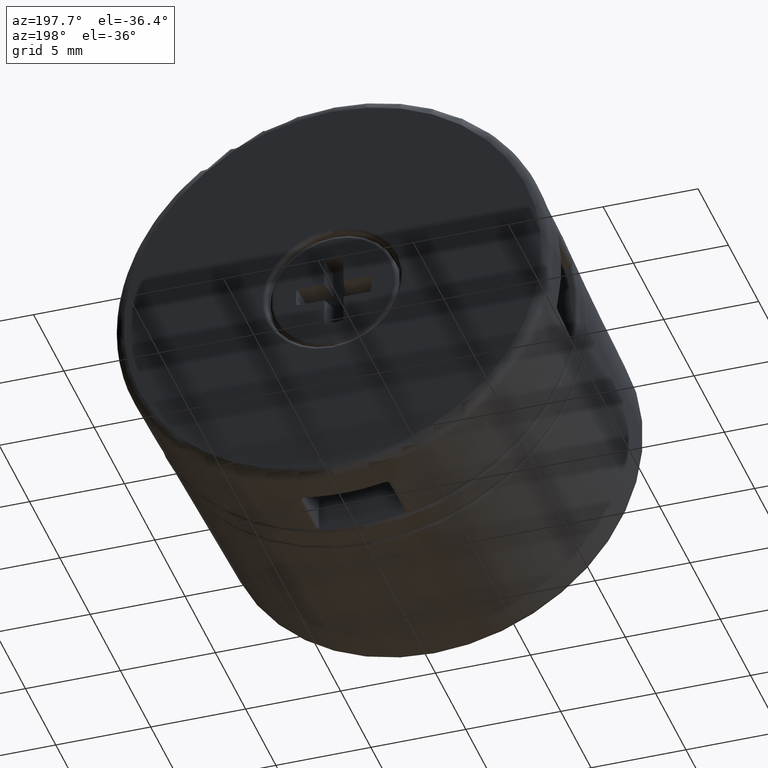
[diagram: clean part render]
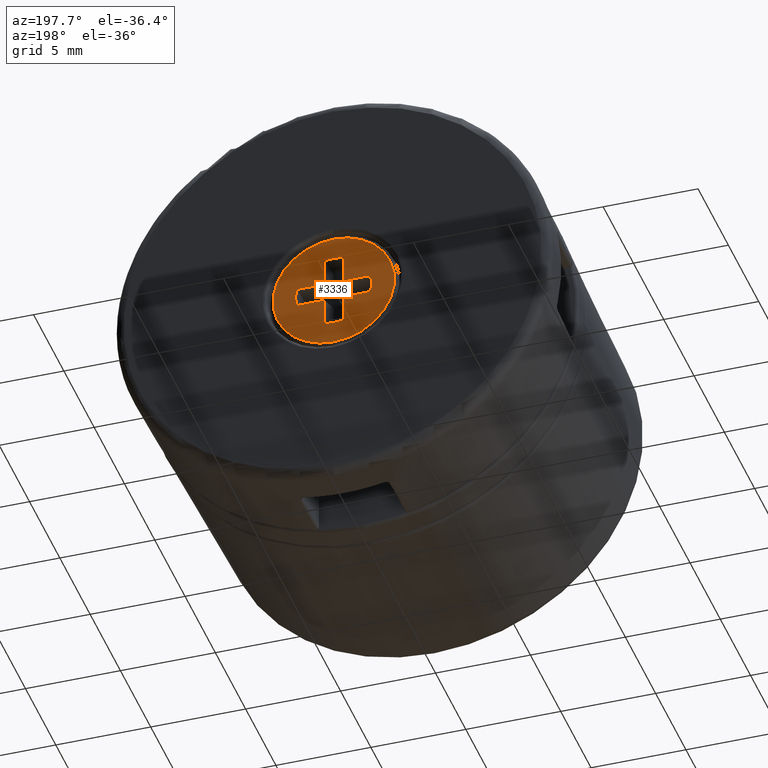
[diagram: same view with one face highlighted and labeled with its STEP entity id]
A machine part, auxiliary view. The second image highlights one B-rep face of the part: STEP entity #3336.
In plain terms, the highlighted planar face has unit normal (0, 1, 0).
Its self-contained STEP definition (entity closure, byte-faithful):
#23 = EDGE_LOOP ( 'NONE', ( #3552, #3553, #3571, #3567, #3575, #4066, #4089, #49, #4155, #4048, #4065, #4046, #4041 ) ) ;
#24 = EDGE_LOOP ( 'NONE', ( #50, #4037 ) ) ;
#49 = ORIENTED_EDGE ( 'NONE', *, *, #3244, .F. ) ;
#50 = ORIENTED_EDGE ( 'NONE', *, *, #3018, .T. ) ;
#151 = VERTEX_POINT ( 'NONE', #2971 ) ;
#186 = VERTEX_POINT ( 'NONE', #2528 ) ;
#187 = VERTEX_POINT ( 'NONE', #2563 ) ;
#188 = VERTEX_POINT ( 'NONE', #2544 ) ;
#200 = VERTEX_POINT ( 'NONE', #2530 ) ;
#209 = VERTEX_POINT ( 'NONE', #2522 ) ;
#245 = CARTESIAN_POINT ( 'NONE',  ( 0.0000000000000000000, 16.80000000000000100, 0.0000000000000000000 ) ) ;
#246 = LINE ( 'NONE', #253, #2174 ) ;
#252 = LINE ( 'NONE', #266, #2120 ) ;
#253 = CARTESIAN_POINT ( 'NONE',  ( 1.936491673103708500, 16.80000000000000100, -0.4999999999999997800 ) ) ;
#254 = DIRECTION ( 'NONE',  ( 0.0000000000000000000, 0.0000000000000000000, -1.000000000000000000 ) ) ;
#256 = DIRECTION ( 'NONE',  ( -1.000000000000000000, 0.0000000000000000000, 1.509514037269647100E-016 ) ) ;
#264 = CARTESIAN_POINT ( 'NONE',  ( -0.4999999999999997800, 16.80000000000000100, 0.5000000000000002200 ) ) ;
#266 = CARTESIAN_POINT ( 'NONE',  ( 0.5000000000000000000, 16.80000000000000100, -0.4999999999999995600 ) ) ;
#270 = LINE ( 'NONE', #264, #2182 ) ;
#271 = DIRECTION ( 'NONE',  ( 1.000000000000000000, -0.0000000000000000000, 1.509514037269646800E-016 ) ) ;
#275 = DIRECTION ( 'NONE',  ( 0.0000000000000000000, 1.000000000000000000, 0.0000000000000000000 ) ) ;
#282 = DIRECTION ( 'NONE',  ( 0.0000000000000000000, 0.0000000000000000000, 1.000000000000000000 ) ) ;
#286 = DIRECTION ( 'NONE',  ( 0.0000000000000000000, 1.000000000000000000, 0.0000000000000000000 ) ) ;
#287 = DIRECTION ( 'NONE',  ( 0.0000000000000000000, 0.0000000000000000000, 1.000000000000000000 ) ) ;
#292 = LINE ( 'NONE', #301, #2088 ) ;
#294 = DIRECTION ( 'NONE',  ( 0.0000000000000000000, 0.0000000000000000000, 1.000000000000000000 ) ) ;
#295 = CARTESIAN_POINT ( 'NONE',  ( 0.0000000000000000000, 16.80000000000000100, 0.0000000000000000000 ) ) ;
#297 = DIRECTION ( 'NONE',  ( -0.0000000000000000000, -0.0000000000000000000, 1.000000000000000000 ) ) ;
#301 = CARTESIAN_POINT ( 'NONE',  ( 1.936491673103708500, 16.80000000000000100, 0.5000000000000000000 ) ) ;
#305 = CARTESIAN_POINT ( 'NONE',  ( 0.0000000000000000000, 16.80000000000000100, 0.0000000000000000000 ) ) ;
#308 = DIRECTION ( 'NONE',  ( 0.0000000000000000000, 1.000000000000000000, 0.0000000000000000000 ) ) ;
#313 = LINE ( 'NONE', #323, #2087 ) ;
#323 = CARTESIAN_POINT ( 'NONE',  ( -0.4999999999999997800, 16.80000000000000100, 1.936491673103708300 ) ) ;
#327 = LINE ( 'NONE', #334, #2283 ) ;
#329 = DIRECTION ( 'NONE',  ( -0.0000000000000000000, -0.0000000000000000000, 1.000000000000000000 ) ) ;
#334 = CARTESIAN_POINT ( 'NONE',  ( -0.5000000000000000000, 16.80000000000000100, -0.4999999999999993300 ) ) ;
#335 = CARTESIAN_POINT ( 'NONE',  ( 0.0000000000000000000, 16.80000000000000100, 0.0000000000000000000 ) ) ;
#339 = DIRECTION ( 'NONE',  ( 0.0000000000000000000, 0.0000000000000000000, 1.000000000000000000 ) ) ;
#341 = DIRECTION ( 'NONE',  ( 3.019028074539294100E-016, 0.0000000000000000000, -1.000000000000000000 ) ) ;
#342 = DIRECTION ( 'NONE',  ( 0.0000000000000000000, 1.000000000000000000, 0.0000000000000000000 ) ) ;
#348 = LINE ( 'NONE', #349, #2321 ) ;
#349 = CARTESIAN_POINT ( 'NONE',  ( -0.5000000000000000000, 16.80000000000000100, -0.4999999999999993300 ) ) ;
#350 = LINE ( 'NONE', #365, #2301 ) ;
#357 = DIRECTION ( 'NONE',  ( 1.000000000000000000, -0.0000000000000000000, 7.547570186348236500E-017 ) ) ;
#365 = CARTESIAN_POINT ( 'NONE',  ( 0.4999999999999997800, 16.80000000000000100, 1.936491673103708300 ) ) ;
#395 = CARTESIAN_POINT ( 'NONE',  ( 0.0000000000000000000, 16.80000000000000100, 0.0000000000000000000 ) ) ;
#396 = DIRECTION ( 'NONE',  ( 0.0000000000000000000, 0.0000000000000000000, 1.000000000000000000 ) ) ;
#404 = DIRECTION ( 'NONE',  ( 0.0000000000000000000, 1.000000000000000000, 0.0000000000000000000 ) ) ;
#405 = DIRECTION ( 'NONE',  ( -1.000000000000000000, 0.0000000000000000000, -4.528542111808940900E-016 ) ) ;
#462 = CARTESIAN_POINT ( 'NONE',  ( 1.936491673103708700, 16.80000000000000100, 0.5000000000000000000 ) ) ;
#471 = CARTESIAN_POINT ( 'NONE',  ( -0.4999999999999997800, 16.80000000000000100, 0.5000000000000002200 ) ) ;
#569 = CARTESIAN_POINT ( 'NONE',  ( -1.936491673103708300, 16.80000000000000100, -0.5000000000000006700 ) ) ;
#589 = DIRECTION ( 'NONE',  ( 0.0000000000000000000, 1.000000000000000000, 0.0000000000000000000 ) ) ;
#590 = FACE_BOUND ( 'NONE', #23, .T. ) ;
#591 = FACE_OUTER_BOUND ( 'NONE', #24, .T. ) ;
#592 = DIRECTION ( 'NONE',  ( 0.0000000000000000000, -0.0000000000000000000, 1.000000000000000000 ) ) ;
#595 = PLANE ( 'NONE',  #2395 ) ;
#596 = CARTESIAN_POINT ( 'NONE',  ( 0.0000000000000000000, 16.80000000000000100, 0.0000000000000000000 ) ) ;
#645 = CARTESIAN_POINT ( 'NONE',  ( -0.5000000000000006700, 16.80000000000000100, 1.936491673103708100 ) ) ;
#706 = CARTESIAN_POINT ( 'NONE',  ( 1.936491673103708500, 16.80000000000000100, -0.4999999999999997800 ) ) ;
#1347 = CARTESIAN_POINT ( 'NONE',  ( 0.4999999999999997800, 16.80000000000000100, 1.936491673103708300 ) ) ;
#1374 = CARTESIAN_POINT ( 'NONE',  ( 0.0000000000000000000, 16.80000000000000100, 1.999999999999999600 ) ) ;
#1379 = CARTESIAN_POINT ( 'NONE',  ( 0.0000000000000000000, 16.80000000000000100, 3.199999999999999700 ) ) ;
#1385 = CARTESIAN_POINT ( 'NONE',  ( 4.041334437186265000E-016, 16.80000000000000100, -3.199999999999999700 ) ) ;
#1741 = AXIS2_PLACEMENT_3D ( 'NONE', #2667, #2694, #2662 ) ;
#1744 = CIRCLE ( 'NONE', #1741, 3.199999999999999700 ) ;
#2087 = VECTOR ( 'NONE', #297, 1000.000000000000000 ) ;
#2088 = VECTOR ( 'NONE', #357, 1000.000000000000000 ) ;
#2110 = CIRCLE ( 'NONE', #2114, 1.999999999999999600 ) ;
#2114 = AXIS2_PLACEMENT_3D ( 'NONE', #245, #275, #282 ) ;
#2118 = CIRCLE ( 'NONE', #2152, 2.000000000000000000 ) ;
#2120 = VECTOR ( 'NONE', #254, 1000.000000000000000 ) ;
#2143 = CIRCLE ( 'NONE', #2184, 2.000000000000000000 ) ;
#2152 = AXIS2_PLACEMENT_3D ( 'NONE', #295, #286, #287 ) ;
#2174 = VECTOR ( 'NONE', #256, 1000.000000000000000 ) ;
#2182 = VECTOR ( 'NONE', #271, 1000.000000000000000 ) ;
#2184 = AXIS2_PLACEMENT_3D ( 'NONE', #305, #308, #294 ) ;
#2214 = CIRCLE ( 'NONE', #2216, 2.000000000000000000 ) ;
#2216 = AXIS2_PLACEMENT_3D ( 'NONE', #335, #342, #339 ) ;
#2283 = VECTOR ( 'NONE', #405, 1000.000000000000000 ) ;
#2291 = AXIS2_PLACEMENT_3D ( 'NONE', #395, #404, #396 ) ;
#2301 = VECTOR ( 'NONE', #341, 1000.000000000000000 ) ;
#2315 = CIRCLE ( 'NONE', #2291, 3.199999999999999700 ) ;
#2321 = VECTOR ( 'NONE', #329, 1000.000000000000000 ) ;
#2384 = CIRCLE ( 'NONE', #2397, 1.999999999999999600 ) ;
#2395 = AXIS2_PLACEMENT_3D ( 'NONE', #596, #589, #592 ) ;
#2397 = AXIS2_PLACEMENT_3D ( 'NONE', #2607, #2599, #2579 ) ;
#2522 = CARTESIAN_POINT ( 'NONE',  ( -0.5000000000000000000, 16.80000000000000100, -0.4999999999999993300 ) ) ;
#2528 = CARTESIAN_POINT ( 'NONE',  ( 0.5000000000000000000, 16.80000000000000100, -0.4999999999999995600 ) ) ;
#2530 = CARTESIAN_POINT ( 'NONE',  ( -0.5000000000000000000, 16.80000000000000100, -1.936491673103708500 ) ) ;
#2544 = CARTESIAN_POINT ( 'NONE',  ( -1.936491673103708500, 16.80000000000000100, 0.5000000000000000000 ) ) ;
#2563 = CARTESIAN_POINT ( 'NONE',  ( 0.5000000000000002200, 16.80000000000000100, 0.4999999999999998900 ) ) ;
#2579 = DIRECTION ( 'NONE',  ( 0.0000000000000000000, 0.0000000000000000000, 1.000000000000000000 ) ) ;
#2599 = DIRECTION ( 'NONE',  ( 0.0000000000000000000, 1.000000000000000000, 0.0000000000000000000 ) ) ;
#2607 = CARTESIAN_POINT ( 'NONE',  ( 0.0000000000000000000, 16.80000000000000100, 0.0000000000000000000 ) ) ;
#2662 = DIRECTION ( 'NONE',  ( 0.0000000000000000000, 0.0000000000000000000, 1.000000000000000000 ) ) ;
#2667 = CARTESIAN_POINT ( 'NONE',  ( 0.0000000000000000000, 16.80000000000000100, 0.0000000000000000000 ) ) ;
#2694 = DIRECTION ( 'NONE',  ( 0.0000000000000000000, 1.000000000000000000, 0.0000000000000000000 ) ) ;
#2971 = CARTESIAN_POINT ( 'NONE',  ( 0.5000000000000000000, 16.80000000000000100, -1.936491673103708500 ) ) ;
#2996 = EDGE_CURVE ( 'NONE', #3613, #3612, #2384, .T. ) ;
#3018 = EDGE_CURVE ( 'NONE', #3601, #3603, #1744, .T. ) ;
#3236 = EDGE_CURVE ( 'NONE', #186, #151, #252, .T. ) ;
#3242 = EDGE_CURVE ( 'NONE', #188, #3302, #270, .T. ) ;
#3244 = EDGE_CURVE ( 'NONE', #3357, #3613, #2110, .T. ) ;
#3245 = EDGE_CURVE ( 'NONE', #3363, #186, #246, .T. ) ;
#3249 = EDGE_CURVE ( 'NONE', #151, #200, #2143, .T. ) ;
#3255 = EDGE_CURVE ( 'NONE', #3311, #3363, #2118, .T. ) ;
#3256 = EDGE_CURVE ( 'NONE', #3302, #3357, #313, .T. ) ;
#3259 = EDGE_CURVE ( 'NONE', #187, #3311, #292, .T. ) ;
#3260 = EDGE_CURVE ( 'NONE', #3312, #188, #2214, .T. ) ;
#3265 = EDGE_CURVE ( 'NONE', #200, #209, #348, .T. ) ;
#3268 = EDGE_CURVE ( 'NONE', #3612, #187, #350, .T. ) ;
#3272 = EDGE_CURVE ( 'NONE', #209, #3312, #327, .T. ) ;
#3273 = EDGE_CURVE ( 'NONE', #3603, #3601, #2315, .T. ) ;
#3302 = VERTEX_POINT ( 'NONE', #471 ) ;
#3311 = VERTEX_POINT ( 'NONE', #462 ) ;
#3312 = VERTEX_POINT ( 'NONE', #569 ) ;
#3336 = ADVANCED_FACE ( 'NONE', ( #590, #591 ), #595, .T. ) ;
#3357 = VERTEX_POINT ( 'NONE', #645 ) ;
#3363 = VERTEX_POINT ( 'NONE', #706 ) ;
#3552 = ORIENTED_EDGE ( 'NONE', *, *, #3249, .F. ) ;
#3553 = ORIENTED_EDGE ( 'NONE', *, *, #3236, .F. ) ;
#3567 = ORIENTED_EDGE ( 'NONE', *, *, #3255, .F. ) ;
#3571 = ORIENTED_EDGE ( 'NONE', *, *, #3245, .F. ) ;
#3575 = ORIENTED_EDGE ( 'NONE', *, *, #3259, .F. ) ;
#3601 = VERTEX_POINT ( 'NONE', #1379 ) ;
#3603 = VERTEX_POINT ( 'NONE', #1385 ) ;
#3612 = VERTEX_POINT ( 'NONE', #1347 ) ;
#3613 = VERTEX_POINT ( 'NONE', #1374 ) ;
#4037 = ORIENTED_EDGE ( 'NONE', *, *, #3273, .T. ) ;
#4041 = ORIENTED_EDGE ( 'NONE', *, *, #3265, .F. ) ;
#4046 = ORIENTED_EDGE ( 'NONE', *, *, #3272, .F. ) ;
#4048 = ORIENTED_EDGE ( 'NONE', *, *, #3242, .F. ) ;
#4065 = ORIENTED_EDGE ( 'NONE', *, *, #3260, .F. ) ;
#4066 = ORIENTED_EDGE ( 'NONE', *, *, #3268, .F. ) ;
#4089 = ORIENTED_EDGE ( 'NONE', *, *, #2996, .F. ) ;
#4155 = ORIENTED_EDGE ( 'NONE', *, *, #3256, .F. ) ;